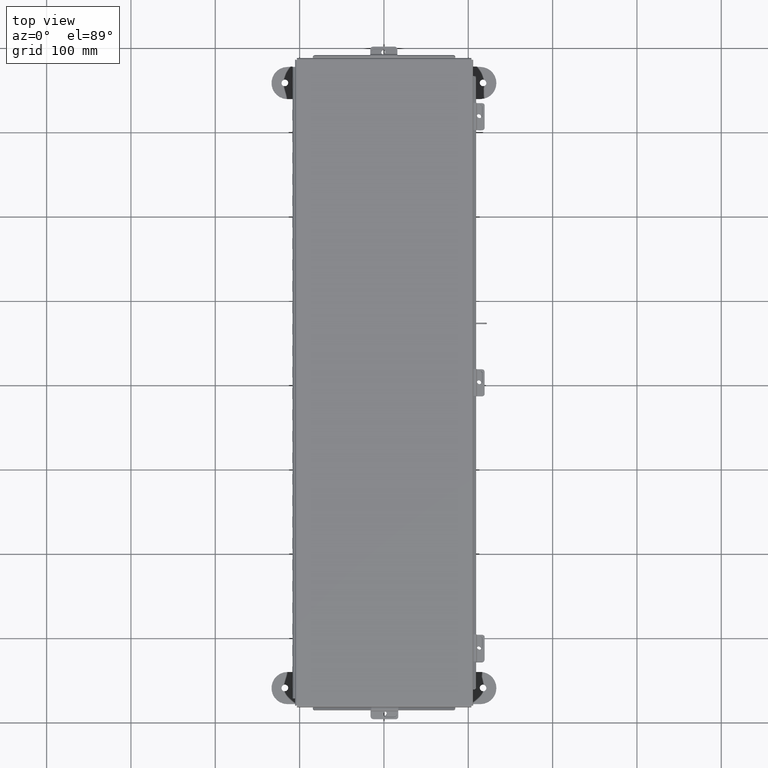
[diagram: clean part render]
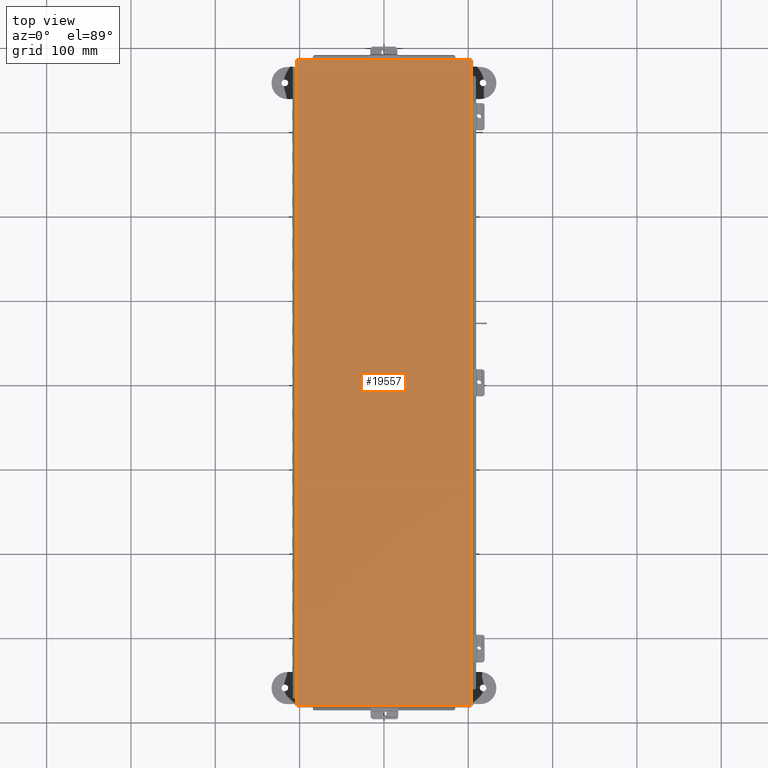
[diagram: same view with one face highlighted and labeled with its STEP entity id]
A machine part, top view. The second image highlights one B-rep face of the part: STEP entity #19557.
In plain terms, the highlighted planar face has unit normal (-0, 0, 1).
Its self-contained STEP definition (entity closure, byte-faithful):
#778 = ORIENTED_EDGE ( 'NONE', *, *, #7920, .T. ) ;
#860 = EDGE_CURVE ( 'NONE', #16839, #7646, #16909, .T. ) ;
#1057 = AXIS2_PLACEMENT_3D ( 'NONE', #11282, #21454, #9347 ) ;
#2829 = VECTOR ( 'NONE', #7307, 39.37007874015748100 ) ;
#3909 = DIRECTION ( 'NONE',  ( 1.013688269061339700E-029, 1.000000000000000000, 6.034785924940740300E-029 ) ) ;
#5517 = CARTESIAN_POINT ( 'NONE',  ( 4.074478932188149800, -15.06855000000000200, -0.07470000000000015500 ) ) ;
#5789 = VECTOR ( 'NONE', #7528, 39.37007874015748100 ) ;
#6768 = CARTESIAN_POINT ( 'NONE',  ( -4.074478932188161400, 15.06854999999999500, -0.07470000000000015500 ) ) ;
#7307 = DIRECTION ( 'NONE',  ( -1.013688269061339700E-029, -1.000000000000000000, -6.034785924940740300E-029 ) ) ;
#7528 = DIRECTION ( 'NONE',  ( -1.000000000000000000, -1.013996417852419800E-029, -7.888609052210086500E-031 ) ) ;
#7555 = LINE ( 'NONE', #19424, #2829 ) ;
#7646 = VERTEX_POINT ( 'NONE', #18291 ) ;
#7920 = EDGE_CURVE ( 'NONE', #15835, #16839, #21894, .T. ) ;
#8122 = ORIENTED_EDGE ( 'NONE', *, *, #860, .T. ) ;
#8603 = ORIENTED_EDGE ( 'NONE', *, *, #21790, .T. ) ;
#9347 = DIRECTION ( 'NONE',  ( -1.000000000000000000, -1.013996417852420000E-029, -7.888609052210086500E-031 ) ) ;
#10530 = FACE_OUTER_BOUND ( 'NONE', #15894, .T. ) ;
#10901 = VECTOR ( 'NONE', #3909, 39.37007874015748100 ) ;
#11282 = CARTESIAN_POINT ( 'NONE',  ( -9.604153102725926100E-018, 0.0000000000000000000, -0.07470000000000015500 ) ) ;
#12427 = LINE ( 'NONE', #6768, #13056 ) ;
#13053 = CARTESIAN_POINT ( 'NONE',  ( 4.068550000000014300, 15.06854999999999700, -0.07470000000000015500 ) ) ;
#13056 = VECTOR ( 'NONE', #24905, 39.37007874015748100 ) ;
#15334 = PLANE ( 'NONE',  #1057 ) ;
#15835 = VERTEX_POINT ( 'NONE', #26045 ) ;
#15894 = EDGE_LOOP ( 'NONE', ( #23287, #8603, #778, #8122 ) ) ;
#16002 = CARTESIAN_POINT ( 'NONE',  ( -4.068550000000025000, -15.07447893218813700, -0.07470000000000015500 ) ) ;
#16141 = EDGE_CURVE ( 'NONE', #7646, #18941, #12427, .T. ) ;
#16839 = VERTEX_POINT ( 'NONE', #25383 ) ;
#16909 = LINE ( 'NONE', #16002, #10901 ) ;
#18291 = CARTESIAN_POINT ( 'NONE',  ( -4.068550000000025900, 15.06854999999999500, -0.07470000000000015500 ) ) ;
#18941 = VERTEX_POINT ( 'NONE', #13053 ) ;
#19424 = CARTESIAN_POINT ( 'NONE',  ( 4.068550000000014300, 15.07447893218813000, -0.07470000000000015500 ) ) ;
#19557 = ADVANCED_FACE ( 'NONE', ( #10530 ), #15334, .T. ) ;
#21454 = DIRECTION ( 'NONE',  ( 7.888609052210086500E-031, -6.033553329776308900E-029, -1.000000000000000000 ) ) ;
#21790 = EDGE_CURVE ( 'NONE', #18941, #15835, #7555, .T. ) ;
#21894 = LINE ( 'NONE', #5517, #5789 ) ;
#23287 = ORIENTED_EDGE ( 'NONE', *, *, #16141, .T. ) ;
#24905 = DIRECTION ( 'NONE',  ( 1.000000000000000000, 1.013996417852419800E-029, 7.888609052210086500E-031 ) ) ;
#25383 = CARTESIAN_POINT ( 'NONE',  ( -4.068550000000025000, -15.06855000000000400, -0.07470000000000015500 ) ) ;
#26045 = CARTESIAN_POINT ( 'NONE',  ( 4.068550000000014300, -15.06855000000000200, -0.07470000000000015500 ) ) ;